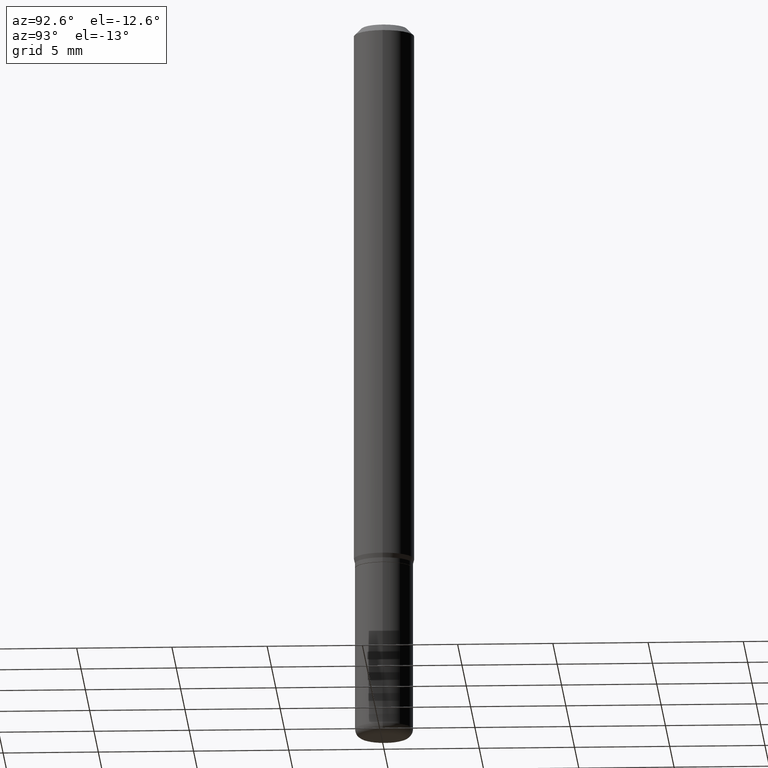
[diagram: clean part render]
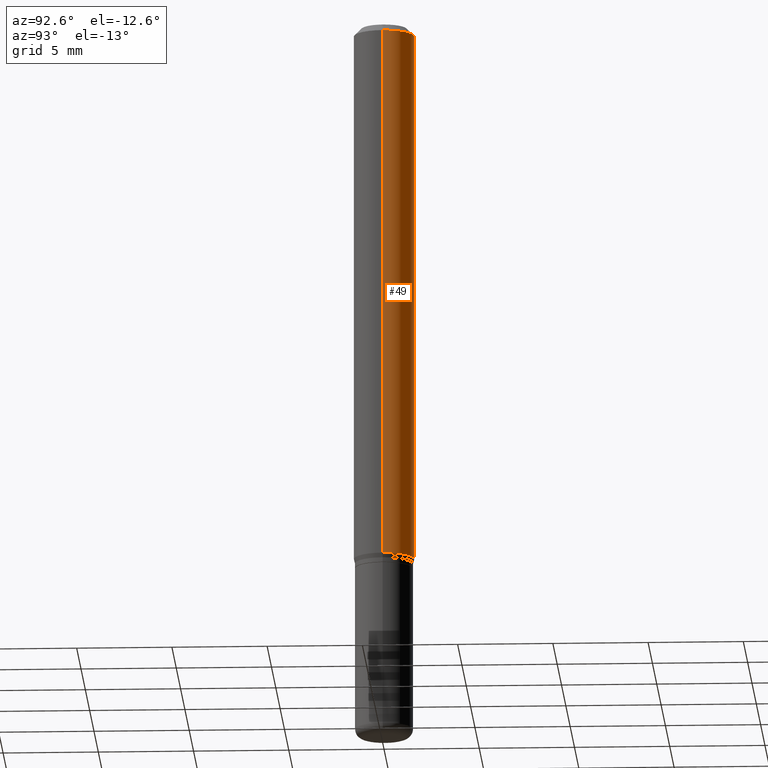
[diagram: same view with one face highlighted and labeled with its STEP entity id]
A machine part, auxiliary view. The second image highlights one B-rep face of the part: STEP entity #49.
In plain terms, the highlighted cylindrical surface (edge-blend (fillet) strip) has radius 1.5875 mm, axis along (-0, 0, 1).
Its self-contained STEP definition (entity closure, byte-faithful):
#18 = EDGE_CURVE ( 'NONE', #112, #510, #447, .T. ) ;
#34 = VERTEX_POINT ( 'NONE', #490 ) ;
#37 = ORIENTED_EDGE ( 'NONE', *, *, #453, .F. ) ;
#49 = ADVANCED_FACE ( 'NONE', ( #173 ), #495, .T. ) ;
#51 = AXIS2_PLACEMENT_3D ( 'NONE', #123, #86, #246 ) ;
#75 = VERTEX_POINT ( 'NONE', #93 ) ;
#86 = DIRECTION ( 'NONE',  ( -2.445468806185136597E-29, 3.491481338843145583E-15, 1.000000000000000000 ) ) ;
#93 = CARTESIAN_POINT ( 'NONE',  ( -0.06250000000000000000, -1.538495874449836183E-15, -0.01499999999999970281 ) ) ;
#98 = CARTESIAN_POINT ( 'NONE',  ( 0.000000000000000000, 0.000000000000000000, 0.000000000000000000 ) ) ;
#110 = DIRECTION ( 'NONE',  ( -2.445468806185136877E-29, 3.491481338843145188E-15, 1.000000000000000000 ) ) ;
#111 = EDGE_CURVE ( 'NONE', #112, #34, #328, .T. ) ;
#112 = VERTEX_POINT ( 'NONE', #226 ) ;
#123 = CARTESIAN_POINT ( 'NONE',  ( 3.668203209277632395E-31, -5.237222008264614861E-17, -0.01499999999999970281 ) ) ;
#129 = CARTESIAN_POINT ( 'NONE',  ( 0.06250000000000000000, -4.888073874380378612E-16, -0.01499999999999970281 ) ) ;
#154 = VECTOR ( 'NONE', #110, 39.37007874015748143 ) ;
#165 = DIRECTION ( 'NONE',  ( -2.445468806185136597E-29, 3.491481338843145583E-15, 1.000000000000000000 ) ) ;
#166 = EDGE_CURVE ( 'NONE', #34, #75, #176, .T. ) ;
#171 = VECTOR ( 'NONE', #217, 39.37007874015748143 ) ;
#173 = FACE_OUTER_BOUND ( 'NONE', #512, .T. ) ;
#176 = LINE ( 'NONE', #378, #154 ) ;
#212 = CARTESIAN_POINT ( 'NONE',  ( 0.06250000000000000000, -4.364351673553916694E-16, 3.047610484872459871E-30 ) ) ;
#217 = DIRECTION ( 'NONE',  ( -2.445468806185136877E-29, 3.491481338843145188E-15, 1.000000000000000000 ) ) ;
#226 = CARTESIAN_POINT ( 'NONE',  ( 0.06250000000000000000, -4.349233115872544161E-15, -1.120669872981078008 ) ) ;
#246 = DIRECTION ( 'NONE',  ( 1.000000000000000000, -6.982962677686266711E-15, 0.000000000000000000 ) ) ;
#282 = DIRECTION ( 'NONE',  ( 1.000000000000000000, -6.982962677686266711E-15, 4.876176775795935793E-29 ) ) ;
#287 = CARTESIAN_POINT ( 'NONE',  ( 2.740563216406685153E-29, -3.912797948517151703E-15, -1.120669872981078008 ) ) ;
#310 = CIRCLE ( 'NONE', #51, 0.06250000000000000000 ) ;
#314 = ORIENTED_EDGE ( 'NONE', *, *, #111, .T. ) ;
#318 = AXIS2_PLACEMENT_3D ( 'NONE', #287, #452, #502 ) ;
#328 = CIRCLE ( 'NONE', #318, 0.06250000000000000000 ) ;
#375 = AXIS2_PLACEMENT_3D ( 'NONE', #98, #165, #282 ) ;
#378 = CARTESIAN_POINT ( 'NONE',  ( -0.06250000000000000000, 4.440892098500626162E-16, -3.074334431409316114E-30 ) ) ;
#414 = ORIENTED_EDGE ( 'NONE', *, *, #166, .T. ) ;
#447 = LINE ( 'NONE', #212, #171 ) ;
#452 = DIRECTION ( 'NONE',  ( -2.445468806185136597E-29, 3.491481338843145583E-15, 1.000000000000000000 ) ) ;
#453 = EDGE_CURVE ( 'NONE', #510, #75, #310, .T. ) ;
#490 = CARTESIAN_POINT ( 'NONE',  ( -0.06250000000000000000, -3.468708738667089875E-15, -1.120669872981078008 ) ) ;
#495 = CYLINDRICAL_SURFACE ( 'NONE', #375, 0.06250000000000000000 ) ;
#502 = DIRECTION ( 'NONE',  ( 1.000000000000000000, -6.982962677686262766E-15, 0.000000000000000000 ) ) ;
#510 = VERTEX_POINT ( 'NONE', #129 ) ;
#512 = EDGE_LOOP ( 'NONE', ( #314, #414, #37, #514 ) ) ;
#514 = ORIENTED_EDGE ( 'NONE', *, *, #18, .F. ) ;